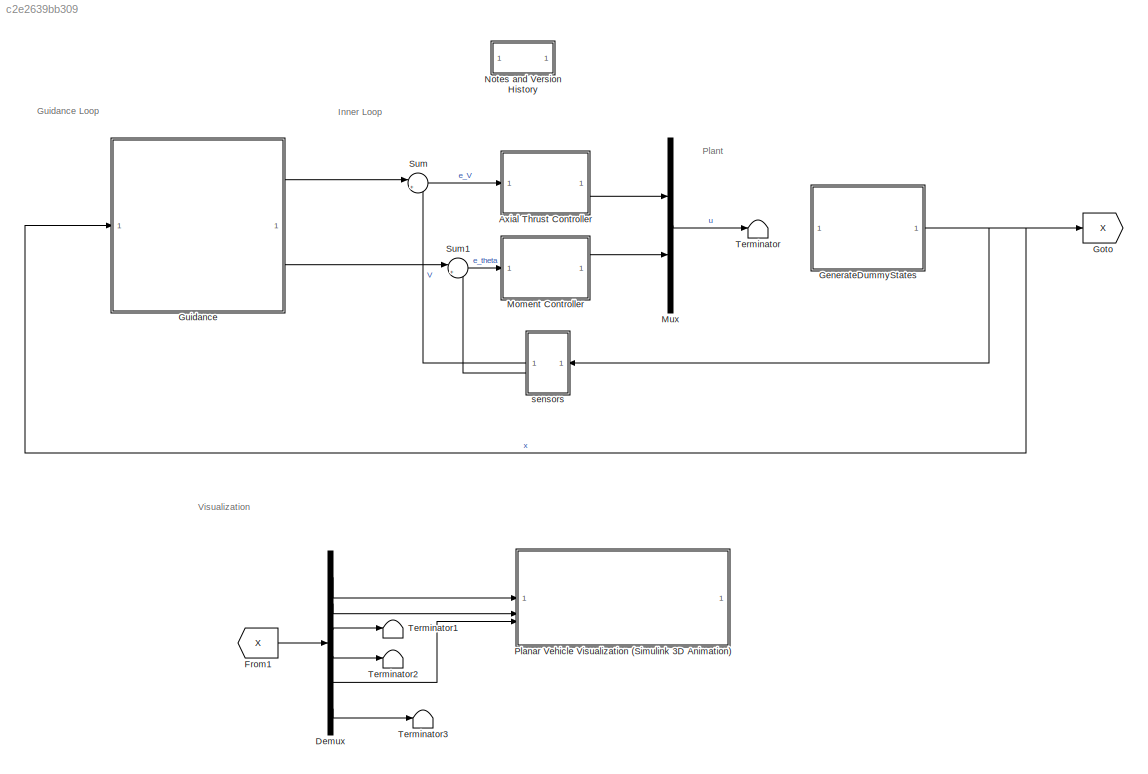
MODEL slx_c2e2639bb309
KIND model
CONFIG AbsTol = auto
CONFIG EnableMultiTasking = off
CONFIG FixedStep = auto
CONFIG MaxStep = deltaTMax
CONFIG MinStep = auto
CONFIG RelTol = 1e-3
CONFIG SampleTimeConstraint = Unconstrained
CONFIG SolverName = VariableStepAuto
CONFIG StartTime = 0.0
CONFIG StopTime = t_final
BLOCK [SubSystem] Axial Thrust Controller
BLOCK [Ground] Axial Thrust Controller/Ground
BLOCK [Terminator] Axial Thrust Controller/Terminator
BLOCK [Inport] Axial Thrust Controller/eV
BLOCK [Outport] Axial Thrust Controller/u1
  VectorParamsAs1DForOutWhenUnconnected = off
BLOCK [Demux] Demux
  Outputs = 6
BLOCK [From] From1
  GotoTag = X
BLOCK [SubSystem] GenerateDummyStates
BLOCK [Clock] GenerateDummyStates/Clock
BLOCK [Ground] GenerateDummyStates/Ground
BLOCK [Ground] GenerateDummyStates/Ground1
BLOCK [Ground] GenerateDummyStates/Ground2
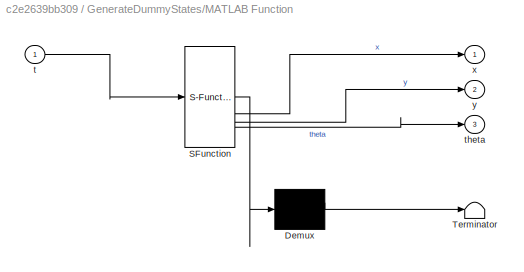
BLOCK [SubSystem] GenerateDummyStates/MATLAB Function
  ErrorFcn = Stateflow.Translate.translate
  PermitHierarchicalResolution = ExplicitOnly
  SFBlockType = MATLAB Function
  TreatAsAtomicUnit = on
BLOCK [Demux] GenerateDummyStates/MATLAB Function/ Demux 
  Outputs = 1
BLOCK [S-Function] GenerateDummyStates/MATLAB Function/ SFunction 
  EnableBusSupport = on
  FunctionName = sf_sfun
  PortCounts = [1 4]
  SFcnIsStateOwnerBlock = off
  SFunctionDeploymentMode = off
  Tag = Stateflow S-Function 4
BLOCK [Terminator] GenerateDummyStates/MATLAB Function/ Terminator 
BLOCK [Inport] GenerateDummyStates/MATLAB Function/t
BLOCK [Outport] GenerateDummyStates/MATLAB Function/theta
  Port = 3
BLOCK [Outport] GenerateDummyStates/MATLAB Function/x
BLOCK [Outport] GenerateDummyStates/MATLAB Function/y
  Port = 2
BLOCK [Mux] GenerateDummyStates/Mux
  DisplayOption = bar
  Inputs = 6
BLOCK [Outport] GenerateDummyStates/x
BLOCK [Goto] Goto
  GotoTag = X
BLOCK [SubSystem] Guidance
BLOCK [Delay] Guidance/Delay (avoid algebraic loop)
  DelayLength = 1
  InputPortMap = u0
BLOCK [Demux] Guidance/Demux1
  Outputs = 3
BLOCK [SubSystem] Guidance/Extract x, y, theta
BLOCK [Demux] Guidance/Extract x, y, theta/Demux
  Outputs = 6
BLOCK [Terminator] Guidance/Extract x, y, theta/Terminator1
BLOCK [Terminator] Guidance/Extract x, y, theta/Terminator2
BLOCK [Terminator] Guidance/Extract x, y, theta/Terminator4
BLOCK [Inport] Guidance/Extract x, y, theta/X
BLOCK [Outport] Guidance/Extract x, y, theta/theta
  Port = 3
  VectorParamsAs1DForOutWhenUnconnected = off
BLOCK [Outport] Guidance/Extract x, y, theta/x = PE
  Port = 2
  VectorParamsAs1DForOutWhenUnconnected = off
BLOCK [Outport] Guidance/Extract x, y, theta/y = PN
  VectorParamsAs1DForOutWhenUnconnected = off
BLOCK [SubSystem] Guidance/FlightRouteManager
BLOCK [Constant] Guidance/FlightRouteManager/Constant
  Value = waypoints
BLOCK [Constant] Guidance/FlightRouteManager/Constant1
  Value = 3
BLOCK [Constant] Guidance/FlightRouteManager/Constant2
  OutDataTypeStr = boolean
  Value = isClosedRoute
BLOCK [SubSystem] Guidance/FlightRouteManager/Determine Active Waypoint Index
BLOCK [DataTypeConversion] Guidance/FlightRouteManager/Determine Active Waypoint Index/Data Type Conversion
  OutDataTypeStr = uint8
  RndMeth = Floor
  SaturateOnIntegerOverflow = off
BLOCK [Reference] Guidance/FlightRouteManager/Determine Active Waypoint Index/Edge Detector  REF=spsEdgeDetectorLib/Edge Detector
  LibrarySourceBlock = sps_lib/Control/Edge Detector
  SourceBlock = spsEdgeDetectorLib/Edge Detector
  SourceType = Edge Detector
BLOCK [SubSystem] Guidance/FlightRouteManager/Determine Active Waypoint Index/MATLAB Function (reset or saturate index)
  ErrorFcn = Stateflow.Translate.translate
  PermitHierarchicalResolution = ExplicitOnly
  SFBlockType = MATLAB Function
  TreatAsAtomicUnit = on
BLOCK [Demux] Guidance/FlightRouteManager/Determine Active Waypoint Index/MATLAB Function (reset or saturate index)/ Demux 
  Outputs = 1
BLOCK [S-Function] Guidance/FlightRouteManager/Determine Active Waypoint Index/MATLAB Function (reset or saturate index)/ SFunction 
  EnableBusSupport = on
  FunctionName = sf_sfun
  PortCounts = [3 2]
  SFcnIsStateOwnerBlock = off
  SFunctionDeploymentMode = off
  Tag = Stateflow S-Function 1
BLOCK [Terminator] Guidance/FlightRouteManager/Determine Active Waypoint Index/MATLAB Function (reset or saturate index)/ Terminator 
BLOCK [Outport] Guidance/FlightRouteManager/Determine Active Waypoint Index/MATLAB Function (reset or saturate index)/activeWaypointIndex
  VectorParamsAs1DForOutWhenUnconnected = off
BLOCK [Inport] Guidance/FlightRouteManager/Determine Active Waypoint Index/MATLAB Function (reset or saturate index)/activeWaypointIndexCurrent
  Port = 3
BLOCK [Inport] Guidance/FlightRouteManager/Determine Active Waypoint Index/MATLAB Function (reset or saturate index)/isClosedRoute
  Port = 2
BLOCK [Inport] Guidance/FlightRouteManager/Determine Active Waypoint Index/MATLAB Function (reset or saturate index)/numWaypoints
BLOCK [Memory] Guidance/FlightRouteManager/Determine Active Waypoint Index/Memory
  InitialCondition = 1
BLOCK [Sum] Guidance/FlightRouteManager/Determine Active Waypoint Index/Sum
  Inputs = |++
BLOCK [Outport] Guidance/FlightRouteManager/Determine Active Waypoint Index/activeWaypointIndex
  VectorParamsAs1DForOutWhenUnconnected = off
BLOCK [Inport] Guidance/FlightRouteManager/Determine Active Waypoint Index/isClosedRoute
  Port = 2
BLOCK [Inport] Guidance/FlightRouteManager/Determine Active Waypoint Index/numWaypoints
BLOCK [Inport] Guidance/FlightRouteManager/Determine Active Waypoint Index/trigger
  Port = 3
BLOCK [Product] Guidance/FlightRouteManager/Divide
  Inputs = */
BLOCK [SubSystem] Guidance/FlightRouteManager/MATLAB Function
  ErrorFcn = Stateflow.Translate.translate
  PermitHierarchicalResolution = ExplicitOnly
  SFBlockType = MATLAB Function
  TreatAsAtomicUnit = on
BLOCK [Demux] Guidance/FlightRouteManager/MATLAB Function/ Demux 
  Outputs = 1
BLOCK [S-Function] Guidance/FlightRouteManager/MATLAB Function/ SFunction 
  EnableBusSupport = on
  FunctionName = sf_sfun
  PortCounts = [2 2]
  SFcnIsStateOwnerBlock = off
  SFunctionDeploymentMode = off
  Tag = Stateflow S-Function 2
BLOCK [Terminator] Guidance/FlightRouteManager/MATLAB Function/ Terminator 
BLOCK [Outport] Guidance/FlightRouteManager/MATLAB Function/activeWaypoint
  VectorParamsAs1DForOutWhenUnconnected = off
BLOCK [Inport] Guidance/FlightRouteManager/MATLAB Function/activeWaypointIndex
  Port = 2
BLOCK [Inport] Guidance/FlightRouteManager/MATLAB Function/waypoints
BLOCK [Width] Guidance/FlightRouteManager/Width
BLOCK [Outport] Guidance/FlightRouteManager/activeWaypoint
  VectorParamsAs1DForOutWhenUnconnected = off
BLOCK [Outport] Guidance/FlightRouteManager/activeWaypointIndex
  Port = 2
  VectorParamsAs1DForOutWhenUnconnected = off
BLOCK [Inport] Guidance/FlightRouteManager/trigger
BLOCK [SubSystem] Guidance/IsAircraftWithinWaypointRadius
BLOCK [Constant] Guidance/IsAircraftWithinWaypointRadius/Constant
  Value = R
BLOCK [RelationalOperator] Guidance/IsAircraftWithinWaypointRadius/Relational Operator
  InputSameDT = off
  Operator = <=
  OutDataTypeStr = boolean
  RndMeth = Simplest
BLOCK [Sum] Guidance/IsAircraftWithinWaypointRadius/Sum
  Inputs = |+-
BLOCK [Inport] Guidance/IsAircraftWithinWaypointRadius/aircraft_position
  Port = 2
BLOCK [SubSystem] Guidance/IsAircraftWithinWaypointRadius/vector_2_norm
BLOCK [Demux] Guidance/IsAircraftWithinWaypointRadius/vector_2_norm/Demux
  Outputs = 3
BLOCK [Math] Guidance/IsAircraftWithinWaypointRadius/vector_2_norm/Math Function
  Operator = magnitude^2
  SignedPower = on
BLOCK [Sqrt] Guidance/IsAircraftWithinWaypointRadius/vector_2_norm/Sqrt
BLOCK [Sum] Guidance/IsAircraftWithinWaypointRadius/vector_2_norm/Sum
  Inputs = +|+|+
BLOCK [Outport] Guidance/IsAircraftWithinWaypointRadius/vector_2_norm/norm(x)
  VectorParamsAs1DForOutWhenUnconnected = off
BLOCK [Inport] Guidance/IsAircraftWithinWaypointRadius/vector_2_norm/x
BLOCK [Inport] Guidance/IsAircraftWithinWaypointRadius/waypoint_position
BLOCK [Outport] Guidance/IsAircraftWithinWaypointRadius/withinRadius
  VectorParamsAs1DForOutWhenUnconnected = off
BLOCK [Constant] Guidance/Note: Modified sample time to be -1
  SampleTime = -1
  Value = 10
BLOCK [Terminator] Guidance/Terminator
BLOCK [Terminator] Guidance/Terminator4
BLOCK [Outport] Guidance/V_d
  VectorParamsAs1DForOutWhenUnconnected = off
BLOCK [SubSystem] Guidance/WaypointTrackingController (Planar)
BLOCK [SubSystem] Guidance/WaypointTrackingController (Planar)/CalculateCourseAngle
BLOCK [Constant] Guidance/WaypointTrackingController (Planar)/CalculateCourseAngle/Constant
  Value = pi/2
BLOCK [Sum] Guidance/WaypointTrackingController (Planar)/CalculateCourseAngle/Sum
  Inputs = |+-
BLOCK [Trigonometry] Guidance/WaypointTrackingController (Planar)/CalculateCourseAngle/Trigonometric Function
  Operator = atan2
BLOCK [Inport] Guidance/WaypointTrackingController (Planar)/CalculateCourseAngle/V_E
  Port = 2
BLOCK [Inport] Guidance/WaypointTrackingController (Planar)/CalculateCourseAngle/V_N
BLOCK [SubSystem] Guidance/WaypointTrackingController (Planar)/CalculateCourseAngle/[0,2*pi) Bound
  Description = Version History  \n                 \n05/??/05: Created
BLOCK [Constant] Guidance/WaypointTrackingController (Planar)/CalculateCourseAngle/[0,2*pi) Bound/Constant
  Value = 2*pi
BLOCK [Math] Guidance/WaypointTrackingController (Planar)/CalculateCourseAngle/[0,2*pi) Bound/Math Function
  Operator = mod
  SignedPower = on
BLOCK [Inport] Guidance/WaypointTrackingController (Planar)/CalculateCourseAngle/[0,2*pi) Bound/in
BLOCK [Outport] Guidance/WaypointTrackingController (Planar)/CalculateCourseAngle/[0,2*pi) Bound/out (bounded)
  VectorParamsAs1DForOutWhenUnconnected = off
BLOCK [Outport] Guidance/WaypointTrackingController (Planar)/CalculateCourseAngle/chi
  VectorParamsAs1DForOutWhenUnconnected = off
BLOCK [SubSystem] Guidance/WaypointTrackingController (Planar)/MATLAB Function (Determine theta_d which minimizes yawing by aircraft)
  ErrorFcn = Stateflow.Translate.translate
  PermitHierarchicalResolution = ExplicitOnly
  SFBlockType = MATLAB Function
  TreatAsAtomicUnit = on
BLOCK [Demux] Guidance/WaypointTrackingController (Planar)/MATLAB Function (Determine theta_d which minimizes yawing by aircraft)/ Demux 
  Outputs = 1
BLOCK [S-Function] Guidance/WaypointTrackingController (Planar)/MATLAB Function (Determine theta_d which minimizes yawing by aircraft)/ SFunction 
  EnableBusSupport = on
  FunctionName = sf_sfun
  PortCounts = [2 2]
  SFcnIsStateOwnerBlock = off
  SFunctionDeploymentMode = off
  Tag = Stateflow S-Function 3
BLOCK [Terminator] Guidance/WaypointTrackingController (Planar)/MATLAB Function (Determine theta_d which minimizes yawing by aircraft)/ Terminator 
BLOCK [Inport] Guidance/WaypointTrackingController (Planar)/MATLAB Function (Determine theta_d which minimizes yawing by aircraft)/chi_wp
BLOCK [Inport] Guidance/WaypointTrackingController (Planar)/MATLAB Function (Determine theta_d which minimizes yawing by aircraft)/theta_aircraft
  Port = 2
BLOCK [Outport] Guidance/WaypointTrackingController (Planar)/MATLAB Function (Determine theta_d which minimizes yawing by aircraft)/theta_d_min
  VectorParamsAs1DForOutWhenUnconnected = off
BLOCK [Sum] Guidance/WaypointTrackingController (Planar)/Sum
  Inputs = |+-
BLOCK [Sum] Guidance/WaypointTrackingController (Planar)/Sum1
  Inputs = |+-
BLOCK [Inport] Guidance/WaypointTrackingController (Planar)/aircraft_PE
  Port = 2
BLOCK [Inport] Guidance/WaypointTrackingController (Planar)/aircraft_PN
BLOCK [Inport] Guidance/WaypointTrackingController (Planar)/aircraft_theta
  Port = 3
BLOCK [Outport] Guidance/WaypointTrackingController (Planar)/theta_d
  VectorParamsAs1DForOutWhenUnconnected = off
BLOCK [Inport] Guidance/WaypointTrackingController (Planar)/waypoint_PE
  Port = 5
BLOCK [Inport] Guidance/WaypointTrackingController (Planar)/waypoint_PN
  Port = 4
BLOCK [SubSystem] Guidance/extract planar position
BLOCK [Constant] Guidance/extract planar position/Constant
  Value = 0
BLOCK [Demux] Guidance/extract planar position/Demux2
  Outputs = 6
BLOCK [Mux] Guidance/extract planar position/Mux1
  DisplayOption = bar
  Inputs = 3
BLOCK [Terminator] Guidance/extract planar position/Terminator5
BLOCK [Terminator] Guidance/extract planar position/Terminator6
BLOCK [Terminator] Guidance/extract planar position/Terminator7
BLOCK [Terminator] Guidance/extract planar position/Terminator8
BLOCK [Inport] Guidance/extract planar position/x
BLOCK [Outport] Guidance/extract planar position/x_ENU
  VectorParamsAs1DForOutWhenUnconnected = off
BLOCK [Outport] Guidance/theta_d
  Port = 2
  VectorParamsAs1DForOutWhenUnconnected = off
BLOCK [Inport] Guidance/x
BLOCK [SubSystem] Moment Controller
BLOCK [Ground] Moment Controller/Ground
BLOCK [Terminator] Moment Controller/Terminator
BLOCK [Inport] Moment Controller/e_theta
BLOCK [Outport] Moment Controller/u2
  VectorParamsAs1DForOutWhenUnconnected = off
BLOCK [Mux] Mux
  DisplayOption = bar
  Inputs = 2
BLOCK [SubSystem] Notes and Version History
BLOCK [SubSystem] Planar Vehicle Visualization (Simulink 3D Animation)
BLOCK [Constant] Planar Vehicle Visualization (Simulink 3D Animation)/Account for how VRML Shuttle is drawn
  Value = pi
BLOCK [Constant] Planar Vehicle Visualization (Simulink 3D Animation)/Constant
  Value = 0
BLOCK [Constant] Planar Vehicle Visualization (Simulink 3D Animation)/Constant1
  Value = 0
BLOCK [Constant] Planar Vehicle Visualization (Simulink 3D Animation)/Constant2
  Value = 0
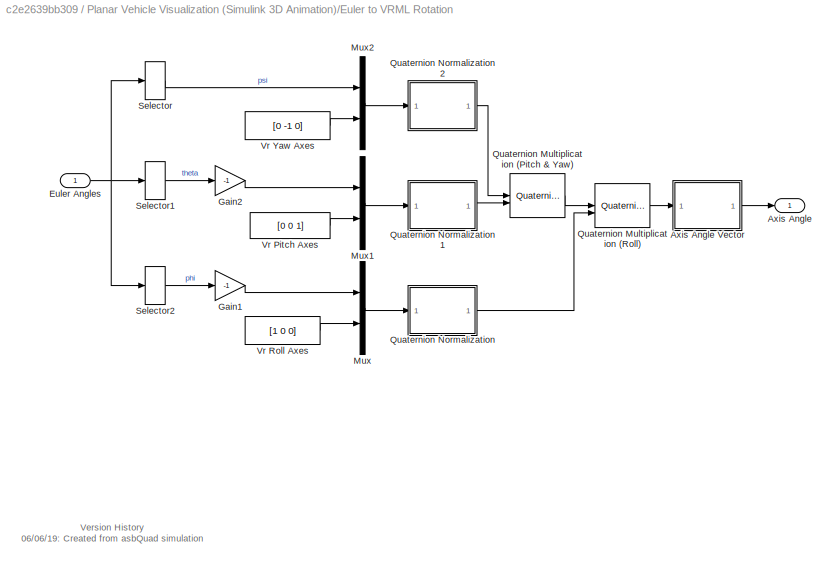
BLOCK [SubSystem] Planar Vehicle Visualization (Simulink 3D Animation)/Euler to VRML Rotation
BLOCK [Outport] Planar Vehicle Visualization (Simulink 3D Animation)/Euler to VRML Rotation/Axis Angle
  VectorParamsAs1DForOutWhenUnconnected = off
BLOCK [SubSystem] Planar Vehicle Visualization (Simulink 3D Animation)/Euler to VRML Rotation/Axis Angle Vector
BLOCK [Gain] Planar Vehicle Visualization (Simulink 3D Animation)/Euler to VRML Rotation/Axis Angle Vector/2
  Gain = 2
  OutDataTypeStr = Inherit: Same as input
  ParamDataTypeStr = Inherit: Same as input
  SaturateOnIntegerOverflow = on
BLOCK [Constant] Planar Vehicle Visualization (Simulink 3D Animation)/Euler to VRML Rotation/Axis Angle Vector/Constant
  Value = 1e-6
BLOCK [Demux] Planar Vehicle Visualization (Simulink 3D Animation)/Euler to VRML Rotation/Axis Angle Vector/Demux
  DisplayOption = none
  Outputs = [1 3 ]
BLOCK [Mux] Planar Vehicle Visualization (Simulink 3D Animation)/Euler to VRML Rotation/Axis Angle Vector/Mux
  DisplayOption = bar
  Inputs = 2
BLOCK [Product] Planar Vehicle Visualization (Simulink 3D Animation)/Euler to VRML Rotation/Axis Angle Vector/Product
  InputSameDT = on
  Inputs = */
  OutDataTypeStr = Inherit: Same as first input
  SaturateOnIntegerOverflow = on
BLOCK [Switch] Planar Vehicle Visualization (Simulink 3D Animation)/Euler to VRML Rotation/Axis Angle Vector/Switch
  Criteria = u2 ~= 0
  InputSameDT = off
  SaturateOnIntegerOverflow = off
BLOCK [Trigonometry] Planar Vehicle Visualization (Simulink 3D Animation)/Euler to VRML Rotation/Axis Angle Vector/Trigonometric Function
BLOCK [Trigonometry] Planar Vehicle Visualization (Simulink 3D Animation)/Euler to VRML Rotation/Axis Angle Vector/Trigonometric Function2
  Operator = acos
BLOCK [Inport] Planar Vehicle Visualization (Simulink 3D Animation)/Euler to VRML Rotation/Axis Angle Vector/e0
BLOCK [Outport] Planar Vehicle Visualization (Simulink 3D Animation)/Euler to VRML Rotation/Axis Angle Vector/e0_norm
  VectorParamsAs1DForOutWhenUnconnected = off
BLOCK [Inport] Planar Vehicle Visualization (Simulink 3D Animation)/Euler to VRML Rotation/Euler Angles
BLOCK [Gain] Planar Vehicle Visualization (Simulink 3D Animation)/Euler to VRML Rotation/Gain1
  Gain = -1
BLOCK [Gain] Planar Vehicle Visualization (Simulink 3D Animation)/Euler to VRML Rotation/Gain2
  Gain = -1
BLOCK [Mux] Planar Vehicle Visualization (Simulink 3D Animation)/Euler to VRML Rotation/Mux
  DisplayOption = bar
  Inputs = 2
BLOCK [Mux] Planar Vehicle Visualization (Simulink 3D Animation)/Euler to VRML Rotation/Mux1
  DisplayOption = bar
  Inputs = 2
BLOCK [Mux] Planar Vehicle Visualization (Simulink 3D Animation)/Euler to VRML Rotation/Mux2
  DisplayOption = bar
  Inputs = 2
BLOCK [Reference] Planar Vehicle Visualization (Simulink 3D Animation)/Euler to VRML Rotation/Quaternion Multiplication (Pitch & Yaw)  REF=aerolibutil/Quaternion
Multiplication
  SourceBlock = aerolibutil/Quaternion\nMultiplication
  SourceType = Quaternion Multiplication
BLOCK [Reference] Planar Vehicle Visualization (Simulink 3D Animation)/Euler to VRML Rotation/Quaternion Multiplication (Roll)  REF=aerolibutil/Quaternion
Multiplication
  SourceBlock = aerolibutil/Quaternion\nMultiplication
  SourceType = Quaternion Multiplication
BLOCK [SubSystem] Planar Vehicle Visualization (Simulink 3D Animation)/Euler to VRML Rotation/Quaternion Normalization
BLOCK [Gain] Planar Vehicle Visualization (Simulink 3D Animation)/Euler to VRML Rotation/Quaternion Normalization/1//2
  Gain = 1/2
  OutDataTypeStr = Inherit: Same as input
  ParamDataTypeStr = Inherit: Same as input
  SaturateOnIntegerOverflow = on
BLOCK [Demux] Planar Vehicle Visualization (Simulink 3D Animation)/Euler to VRML Rotation/Quaternion Normalization/Demux
  DisplayOption = none
  Outputs = [1 3]
BLOCK [Mux] Planar Vehicle Visualization (Simulink 3D Animation)/Euler to VRML Rotation/Quaternion Normalization/Mux
  DisplayOption = bar
  Inputs = 2
BLOCK [Product] Planar Vehicle Visualization (Simulink 3D Animation)/Euler to VRML Rotation/Quaternion Normalization/Product
  InputSameDT = on
  OutDataTypeStr = Inherit: Same as first input
  SaturateOnIntegerOverflow = on
BLOCK [Trigonometry] Planar Vehicle Visualization (Simulink 3D Animation)/Euler to VRML Rotation/Quaternion Normalization/Trigonometric Function
BLOCK [Trigonometry] Planar Vehicle Visualization (Simulink 3D Animation)/Euler to VRML Rotation/Quaternion Normalization/Trigonometric Function1
  Operator = cos
BLOCK [Inport] Planar Vehicle Visualization (Simulink 3D Animation)/Euler to VRML Rotation/Quaternion Normalization/e0
BLOCK [Outport] Planar Vehicle Visualization (Simulink 3D Animation)/Euler to VRML Rotation/Quaternion Normalization/e0_norm
  VectorParamsAs1DForOutWhenUnconnected = off
BLOCK [SubSystem] Planar Vehicle Visualization (Simulink 3D Animation)/Euler to VRML Rotation/Quaternion Normalization1
BLOCK [Gain] Planar Vehicle Visualization (Simulink 3D Animation)/Euler to VRML Rotation/Quaternion Normalization1/1//2
  Gain = 1/2
  OutDataTypeStr = Inherit: Same as input
  ParamDataTypeStr = Inherit: Same as input
  SaturateOnIntegerOverflow = on
BLOCK [Demux] Planar Vehicle Visualization (Simulink 3D Animation)/Euler to VRML Rotation/Quaternion Normalization1/Demux
  DisplayOption = none
  Outputs = [1 3]
BLOCK [Mux] Planar Vehicle Visualization (Simulink 3D Animation)/Euler to VRML Rotation/Quaternion Normalization1/Mux
  DisplayOption = bar
  Inputs = 2
BLOCK [Product] Planar Vehicle Visualization (Simulink 3D Animation)/Euler to VRML Rotation/Quaternion Normalization1/Product
  InputSameDT = on
  OutDataTypeStr = Inherit: Same as first input
  SaturateOnIntegerOverflow = on
BLOCK [Trigonometry] Planar Vehicle Visualization (Simulink 3D Animation)/Euler to VRML Rotation/Quaternion Normalization1/Trigonometric Function
BLOCK [Trigonometry] Planar Vehicle Visualization (Simulink 3D Animation)/Euler to VRML Rotation/Quaternion Normalization1/Trigonometric Function1
  Operator = cos
BLOCK [Inport] Planar Vehicle Visualization (Simulink 3D Animation)/Euler to VRML Rotation/Quaternion Normalization1/e0
BLOCK [Outport] Planar Vehicle Visualization (Simulink 3D Animation)/Euler to VRML Rotation/Quaternion Normalization1/e0_norm
  VectorParamsAs1DForOutWhenUnconnected = off
BLOCK [SubSystem] Planar Vehicle Visualization (Simulink 3D Animation)/Euler to VRML Rotation/Quaternion Normalization2
BLOCK [Gain] Planar Vehicle Visualization (Simulink 3D Animation)/Euler to VRML Rotation/Quaternion Normalization2/1//2
  Gain = 1/2
  OutDataTypeStr = Inherit: Same as input
  ParamDataTypeStr = Inherit: Same as input
  SaturateOnIntegerOverflow = on
BLOCK [Demux] Planar Vehicle Visualization (Simulink 3D Animation)/Euler to VRML Rotation/Quaternion Normalization2/Demux
  DisplayOption = none
  Outputs = [1 3]
BLOCK [Mux] Planar Vehicle Visualization (Simulink 3D Animation)/Euler to VRML Rotation/Quaternion Normalization2/Mux
  DisplayOption = bar
  Inputs = 2
BLOCK [Product] Planar Vehicle Visualization (Simulink 3D Animation)/Euler to VRML Rotation/Quaternion Normalization2/Product
  InputSameDT = on
  OutDataTypeStr = Inherit: Same as first input
  SaturateOnIntegerOverflow = on
BLOCK [Trigonometry] Planar Vehicle Visualization (Simulink 3D Animation)/Euler to VRML Rotation/Quaternion Normalization2/Trigonometric Function
BLOCK [Trigonometry] Planar Vehicle Visualization (Simulink 3D Animation)/Euler to VRML Rotation/Quaternion Normalization2/Trigonometric Function1
  Operator = cos
BLOCK [Inport] Planar Vehicle Visualization (Simulink 3D Animation)/Euler to VRML Rotation/Quaternion Normalization2/e0
BLOCK [Outport] Planar Vehicle Visualization (Simulink 3D Animation)/Euler to VRML Rotation/Quaternion Normalization2/e0_norm
  VectorParamsAs1DForOutWhenUnconnected = off
BLOCK [Selector] Planar Vehicle Visualization (Simulink 3D Animation)/Euler to VRML Rotation/Selector
  IndexOptions = Index vector (dialog)
  Indices = [3]
  InputPortWidth = 3
  OutputSizes = 1
BLOCK [Selector] Planar Vehicle Visualization (Simulink 3D Animation)/Euler to VRML Rotation/Selector1
  IndexOptions = Index vector (dialog)
  Indices = [2]
  InputPortWidth = 3
  OutputSizes = 1
BLOCK [Selector] Planar Vehicle Visualization (Simulink 3D Animation)/Euler to VRML Rotation/Selector2
  IndexOptions = Index vector (dialog)
  Indices = [1]
  InputPortWidth = 3
  OutputSizes = 1
BLOCK [Constant] Planar Vehicle Visualization (Simulink 3D Animation)/Euler to VRML Rotation/Vr Pitch Axes
  NameLocation = top
  Value = [0 0 1]
BLOCK [Constant] Planar Vehicle Visualization (Simulink 3D Animation)/Euler to VRML Rotation/Vr Roll Axes
  NameLocation = top
  Value = [1 0 0]
BLOCK [Constant] Planar Vehicle Visualization (Simulink 3D Animation)/Euler to VRML Rotation/Vr Yaw Axes
  Value = [0 -1 0]
BLOCK [Mux] Planar Vehicle Visualization (Simulink 3D Animation)/Mux
  DisplayOption = bar
  Inputs = 3
BLOCK [Mux] Planar Vehicle Visualization (Simulink 3D Animation)/Mux1
  DisplayOption = bar
  Inputs = 3
BLOCK [SubSystem] Planar Vehicle Visualization (Simulink 3D Animation)/NED to VRML Translation
BLOCK [Demux] Planar Vehicle Visualization (Simulink 3D Animation)/NED to VRML Translation/Demux
  DisplayOption = none
  Outputs = 3
BLOCK [Mux] Planar Vehicle Visualization (Simulink 3D Animation)/NED to VRML Translation/Mux
  DisplayOption = bar
  Inputs = 3
BLOCK [Inport] Planar Vehicle Visualization (Simulink 3D Animation)/NED to VRML Translation/X_NED
BLOCK [Outport] Planar Vehicle Visualization (Simulink 3D Animation)/NED to VRML Translation/X_VRML
  VectorParamsAs1DForOutWhenUnconnected = off
BLOCK [Gain] Planar Vehicle Visualization (Simulink 3D Animation)/NED to VRML Translation/rad-->deg1
  Gain = -1
  NameLocation = top
  OutDataTypeStr = Inherit: Same as input
  ParamDataTypeStr = Inherit: Same as input
  SaturateOnIntegerOverflow = on
BLOCK [Sum] Planar Vehicle Visualization (Simulink 3D Animation)/Sum
  Inputs = |++
BLOCK [Reference] Planar Vehicle Visualization (Simulink 3D Animation)/VR Sink  REF=vrlib/VR Sink
  InstantiateOnLoad = on
  SourceBlock = vrlib/VR Sink
  SourceType = Virtual Reality Sink
BLOCK [Inport] Planar Vehicle Visualization (Simulink 3D Animation)/theta
  Port = 3
BLOCK [SubSystem] Planar Vehicle Visualization (Simulink 3D Animation)/theta to psi
BLOCK [Constant] Planar Vehicle Visualization (Simulink 3D Animation)/theta to psi/Constant
  Value = pi/2
BLOCK [Sum] Planar Vehicle Visualization (Simulink 3D Animation)/theta to psi/Sum
  Inputs = |-+
BLOCK [Outport] Planar Vehicle Visualization (Simulink 3D Animation)/theta to psi/psi
  VectorParamsAs1DForOutWhenUnconnected = off
BLOCK [Inport] Planar Vehicle Visualization (Simulink 3D Animation)/theta to psi/theta
BLOCK [Inport] Planar Vehicle Visualization (Simulink 3D Animation)/x (P_E)
BLOCK [Inport] Planar Vehicle Visualization (Simulink 3D Animation)/y (P_N)
  Port = 2
BLOCK [Sum] Sum
  Inputs = |+-
BLOCK [Sum] Sum1
  Inputs = |+-
BLOCK [Terminator] Terminator
BLOCK [Terminator] Terminator1
BLOCK [Terminator] Terminator2
BLOCK [Terminator] Terminator3
BLOCK [SubSystem] sensors
BLOCK [Demux] sensors/Demux
  Outputs = 6
BLOCK [Terminator] sensors/Terminator
BLOCK [Terminator] sensors/Terminator1
BLOCK [Terminator] sensors/Terminator2
BLOCK [Terminator] sensors/Terminator3
BLOCK [Terminator] sensors/Terminator4
BLOCK [Terminator] sensors/Terminator5
BLOCK [Outport] sensors/V
  VectorParamsAs1DForOutWhenUnconnected = off
BLOCK [SubSystem] sensors/rate_sensors
BLOCK [Demux] sensors/rate_sensors/Demux
  Outputs = 6
BLOCK [Terminator] sensors/rate_sensors/Terminator
BLOCK [Terminator] sensors/rate_sensors/Terminator1
BLOCK [Terminator] sensors/rate_sensors/Terminator2
BLOCK [Outport] sensors/rate_sensors/V
  VectorParamsAs1DForOutWhenUnconnected = off
BLOCK [SubSystem] sensors/rate_sensors/airspeed_planar
BLOCK [Math] sensors/rate_sensors/airspeed_planar/Math Function
  Operator = magnitude^2
  SignedPower = on
BLOCK [Math] sensors/rate_sensors/airspeed_planar/Math Function1
  Operator = magnitude^2
  SignedPower = on
BLOCK [Sqrt] sensors/rate_sensors/airspeed_planar/Sqrt
BLOCK [Sum] sensors/rate_sensors/airspeed_planar/Sum
  IconShape = rectangular
BLOCK [Outport] sensors/rate_sensors/airspeed_planar/Va
  VectorParamsAs1DForOutWhenUnconnected = off
BLOCK [Inport] sensors/rate_sensors/airspeed_planar/Vx
BLOCK [Inport] sensors/rate_sensors/airspeed_planar/Vy
  Port = 2
BLOCK [Outport] sensors/rate_sensors/thetaDot
  Port = 2
  VectorParamsAs1DForOutWhenUnconnected = off
BLOCK [Inport] sensors/rate_sensors/x
BLOCK [Outport] sensors/theta
  Port = 2
  VectorParamsAs1DForOutWhenUnconnected = off
BLOCK [Inport] sensors/x
ANNOTATION (root): Guidance Loop
ANNOTATION (root): Inner Loop
ANNOTATION (root): Plant
ANNOTATION (root): Visualization
ANNOTATION Guidance/FlightRouteManager: Version History: 05/31/19: Created 06/02/19: Fixing edge detector. 06/04/19: Clean up edge detector
ANNOTATION Guidance/IsAircraftWithinWaypointRadius: Version History 06/04/19: Created
ANNOTATION Guidance/WaypointTrackingController (Planar): Version History 06/05/19: Created 06/06/19: Updated documentation. Added logic to minimize turning needed
ANNOTATION Guidance/WaypointTrackingController (Planar)/CalculateCourseAngle: Version History 06/05/19: Created
ANNOTATION Notes and Version History: Skeleton code to show how to perform guidance and inner loop control with a planar vehicle. Christopher Lum <email> Version History 06/04/19: Created from previous model 06/05/19: Updated 06/06/19: Adding Simulink 3D Animation visualization 06/07/19: Added waypoint following. Confirmed to work. 04/04/21: Tested and confirmed to work after removing the wrapping of theta. Rewired diagram 05/20/21: B...<+207ch>
ANNOTATION Planar Vehicle Visualization (Simulink 3D Animation): Version History 06/06/19: Created 06/07/19: Updated scale and time step for animation
ANNOTATION Planar Vehicle Visualization (Simulink 3D Animation)/Euler to VRML Rotation: Version History 06/06/19: Created from asbQuad simulation
ANNOTATION Planar Vehicle Visualization (Simulink 3D Animation)/NED to VRML Translation: Version History 06/05/19: Created
ANNOTATION sensors/rate_sensors: Version History 03/27/19: Created
ANNOTATION sensors/rate_sensors/airspeed_planar: Version History 03/26/19: Created
LINE Axial Thrust Controller/Ground:1 -> Axial Thrust Controller/u1:1
LINE Axial Thrust Controller/eV:1 -> Axial Thrust Controller/Terminator:1
LINE Axial Thrust Controller:1 -> Mux:1
LINE Demux:1 -> Planar Vehicle Visualization (Simulink 3D Animation):1
LINE Demux:2 -> Planar Vehicle Visualization (Simulink 3D Animation):2
LINE Demux:3 -> Terminator1:1
LINE Demux:4 -> Terminator2:1
LINE Demux:5 -> Planar Vehicle Visualization (Simulink 3D Animation):3
LINE Demux:6 -> Terminator3:1
LINE From1:1 -> Demux:1
LINE GenerateDummyStates/Clock:1 -> GenerateDummyStates/MATLAB Function:1
LINE GenerateDummyStates/Ground1:1 -> GenerateDummyStates/Mux:4
LINE GenerateDummyStates/Ground2:1 -> GenerateDummyStates/Mux:6
LINE GenerateDummyStates/Ground:1 -> GenerateDummyStates/Mux:3
LINE GenerateDummyStates/MATLAB Function:1 -> GenerateDummyStates/Mux:1
LINE GenerateDummyStates/MATLAB Function:2 -> GenerateDummyStates/Mux:2
LINE GenerateDummyStates/MATLAB Function:3 -> GenerateDummyStates/Mux:5
LINE GenerateDummyStates/Mux:1 -> GenerateDummyStates/x:1
NET GenerateDummyStates:1 -> Goto:1, Guidance:1, sensors:1
LINE Guidance/Delay (avoid algebraic loop):1 -> Guidance/IsAircraftWithinWaypointRadius:1
LINE Guidance/Demux1:1 -> Guidance/WaypointTrackingController (Planar):5
LINE Guidance/Demux1:2 -> Guidance/WaypointTrackingController (Planar):4
LINE Guidance/Demux1:3 -> Guidance/Terminator:1
LINE Guidance/Extract x, y, theta/Demux:1 -> Guidance/Extract x, y, theta/x = PE:1
LINE Guidance/Extract x, y, theta/Demux:2 -> Guidance/Extract x, y, theta/y = PN:1
LINE Guidance/Extract x, y, theta/Demux:3 -> Guidance/Extract x, y, theta/Terminator1:1
LINE Guidance/Extract x, y, theta/Demux:4 -> Guidance/Extract x, y, theta/Terminator2:1
LINE Guidance/Extract x, y, theta/Demux:5 -> Guidance/Extract x, y, theta/theta:1
LINE Guidance/Extract x, y, theta/Demux:6 -> Guidance/Extract x, y, theta/Terminator4:1
LINE Guidance/Extract x, y, theta/X:1 -> Guidance/Extract x, y, theta/Demux:1
LINE Guidance/Extract x, y, theta:1 -> Guidance/WaypointTrackingController (Planar):1
LINE Guidance/Extract x, y, theta:2 -> Guidance/WaypointTrackingController (Planar):2
LINE Guidance/Extract x, y, theta:3 -> Guidance/WaypointTrackingController (Planar):3
LINE Guidance/FlightRouteManager/Constant1:1 -> Guidance/FlightRouteManager/Divide:2
LINE Guidance/FlightRouteManager/Constant2:1 -> Guidance/FlightRouteManager/Determine Active Waypoint Index:2
NET Guidance/FlightRouteManager/Constant:1 -> Guidance/FlightRouteManager/MATLAB Function:1, Guidance/FlightRouteManager/Width:1
LINE Guidance/FlightRouteManager/Determine Active Waypoint Index/Data Type Conversion:1 -> Guidance/FlightRouteManager/Determine Active Waypoint Index/Sum:1
LINE Guidance/FlightRouteManager/Determine Active Waypoint Index/Edge Detector:1 -> Guidance/FlightRouteManager/Determine Active Waypoint Index/Data Type Conversion:1
NET Guidance/FlightRouteManager/Determine Active Waypoint Index/MATLAB Function (reset or saturate index):1 -> Guidance/FlightRouteManager/Determine Active Waypoint Index/Memory:1, Guidance/FlightRouteManager/Determine Active Waypoint Index/activeWaypointIndex:1
LINE Guidance/FlightRouteManager/Determine Active Waypoint Index/Memory:1 -> Guidance/FlightRouteManager/Determine Active Waypoint Index/Sum:2
LINE Guidance/FlightRouteManager/Determine Active Waypoint Index/Sum:1 -> Guidance/FlightRouteManager/Determine Active Waypoint Index/MATLAB Function (reset or saturate index):3
LINE Guidance/FlightRouteManager/Determine Active Waypoint Index/isClosedRoute:1 -> Guidance/FlightRouteManager/Determine Active Waypoint Index/MATLAB Function (reset or saturate index):2
LINE Guidance/FlightRouteManager/Determine Active Waypoint Index/numWaypoints:1 -> Guidance/FlightRouteManager/Determine Active Waypoint Index/MATLAB Function (reset or saturate index):1
LINE Guidance/FlightRouteManager/Determine Active Waypoint Index/trigger:1 -> Guidance/FlightRouteManager/Determine Active Waypoint Index/Edge Detector:1
NET Guidance/FlightRouteManager/Determine Active Waypoint Index:1 -> Guidance/FlightRouteManager/MATLAB Function:2, Guidance/FlightRouteManager/activeWaypointIndex:1
LINE Guidance/FlightRouteManager/Divide:1 -> Guidance/FlightRouteManager/Determine Active Waypoint Index:1
LINE Guidance/FlightRouteManager/MATLAB Function:1 -> Guidance/FlightRouteManager/activeWaypoint:1
LINE Guidance/FlightRouteManager/Width:1 -> Guidance/FlightRouteManager/Divide:1
LINE Guidance/FlightRouteManager/trigger:1 -> Guidance/FlightRouteManager/Determine Active Waypoint Index:3
NET Guidance/FlightRouteManager:1 -> Guidance/Delay (avoid algebraic loop):1, Guidance/Demux1:1
LINE Guidance/FlightRouteManager:2 -> Guidance/Terminator4:1
LINE Guidance/IsAircraftWithinWaypointRadius/Constant:1 -> Guidance/IsAircraftWithinWaypointRadius/Relational Operator:2
LINE Guidance/IsAircraftWithinWaypointRadius/Relational Operator:1 -> Guidance/IsAircraftWithinWaypointRadius/withinRadius:1
LINE Guidance/IsAircraftWithinWaypointRadius/Sum:1 -> Guidance/IsAircraftWithinWaypointRadius/vector_2_norm:1
LINE Guidance/IsAircraftWithinWaypointRadius/aircraft_position:1 -> Guidance/IsAircraftWithinWaypointRadius/Sum:2
LINE Guidance/IsAircraftWithinWaypointRadius/vector_2_norm/Demux:1 -> Guidance/IsAircraftWithinWaypointRadius/vector_2_norm/Sum:1
LINE Guidance/IsAircraftWithinWaypointRadius/vector_2_norm/Demux:2 -> Guidance/IsAircraftWithinWaypointRadius/vector_2_norm/Sum:2
LINE Guidance/IsAircraftWithinWaypointRadius/vector_2_norm/Demux:3 -> Guidance/IsAircraftWithinWaypointRadius/vector_2_norm/Sum:3
LINE Guidance/IsAircraftWithinWaypointRadius/vector_2_norm/Math Function:1 -> Guidance/IsAircraftWithinWaypointRadius/vector_2_norm/Demux:1
LINE Guidance/IsAircraftWithinWaypointRadius/vector_2_norm/Sqrt:1 -> Guidance/IsAircraftWithinWaypointRadius/vector_2_norm/norm(x):1
LINE Guidance/IsAircraftWithinWaypointRadius/vector_2_norm/Sum:1 -> Guidance/IsAircraftWithinWaypointRadius/vector_2_norm/Sqrt:1
LINE Guidance/IsAircraftWithinWaypointRadius/vector_2_norm/x:1 -> Guidance/IsAircraftWithinWaypointRadius/vector_2_norm/Math Function:1
LINE Guidance/IsAircraftWithinWaypointRadius/vector_2_norm:1 -> Guidance/IsAircraftWithinWaypointRadius/Relational Operator:1
LINE Guidance/IsAircraftWithinWaypointRadius/waypoint_position:1 -> Guidance/IsAircraftWithinWaypointRadius/Sum:1
LINE Guidance/IsAircraftWithinWaypointRadius:1 -> Guidance/FlightRouteManager:1
LINE Guidance/Note: Modified sample time to be -1:1 -> Guidance/V_d:1
LINE Guidance/WaypointTrackingController (Planar)/CalculateCourseAngle/Constant:1 -> Guidance/WaypointTrackingController (Planar)/CalculateCourseAngle/Sum:1
LINE Guidance/WaypointTrackingController (Planar)/CalculateCourseAngle/Sum:1 -> Guidance/WaypointTrackingController (Planar)/CalculateCourseAngle/[0,2*pi) Bound:1
LINE Guidance/WaypointTrackingController (Planar)/CalculateCourseAngle/Trigonometric Function:1 -> Guidance/WaypointTrackingController (Planar)/CalculateCourseAngle/Sum:2
LINE Guidance/WaypointTrackingController (Planar)/CalculateCourseAngle/V_E:1 -> Guidance/WaypointTrackingController (Planar)/CalculateCourseAngle/Trigonometric Function:2
LINE Guidance/WaypointTrackingController (Planar)/CalculateCourseAngle/V_N:1 -> Guidance/WaypointTrackingController (Planar)/CalculateCourseAngle/Trigonometric Function:1
LINE Guidance/WaypointTrackingController (Planar)/CalculateCourseAngle/[0,2*pi) Bound/Constant:1 -> Guidance/WaypointTrackingController (Planar)/CalculateCourseAngle/[0,2*pi) Bound/Math Function:2
LINE Guidance/WaypointTrackingController (Planar)/CalculateCourseAngle/[0,2*pi) Bound/Math Function:1 -> Guidance/WaypointTrackingController (Planar)/CalculateCourseAngle/[0,2*pi) Bound/out (bounded):1
LINE Guidance/WaypointTrackingController (Planar)/CalculateCourseAngle/[0,2*pi) Bound/in:1 -> Guidance/WaypointTrackingController (Planar)/CalculateCourseAngle/[0,2*pi) Bound/Math Function:1
LINE Guidance/WaypointTrackingController (Planar)/CalculateCourseAngle/[0,2*pi) Bound:1 -> Guidance/WaypointTrackingController (Planar)/CalculateCourseAngle/chi:1
LINE Guidance/WaypointTrackingController (Planar)/CalculateCourseAngle:1 -> Guidance/WaypointTrackingController (Planar)/MATLAB Function (Determine theta_d which minimizes yawing by aircraft):1
LINE Guidance/WaypointTrackingController (Planar)/MATLAB Function (Determine theta_d which minimizes yawing by aircraft):1 -> Guidance/WaypointTrackingController (Planar)/theta_d:1
LINE Guidance/WaypointTrackingController (Planar)/Sum1:1 -> Guidance/WaypointTrackingController (Planar)/CalculateCourseAngle:2
LINE Guidance/WaypointTrackingController (Planar)/Sum:1 -> Guidance/WaypointTrackingController (Planar)/CalculateCourseAngle:1
LINE Guidance/WaypointTrackingController (Planar)/aircraft_PE:1 -> Guidance/WaypointTrackingController (Planar)/Sum1:2
LINE Guidance/WaypointTrackingController (Planar)/aircraft_PN:1 -> Guidance/WaypointTrackingController (Planar)/Sum:2
LINE Guidance/WaypointTrackingController (Planar)/aircraft_theta:1 -> Guidance/WaypointTrackingController (Planar)/MATLAB Function (Determine theta_d which minimizes yawing by aircraft):2
LINE Guidance/WaypointTrackingController (Planar)/waypoint_PE:1 -> Guidance/WaypointTrackingController (Planar)/Sum1:1
LINE Guidance/WaypointTrackingController (Planar)/waypoint_PN:1 -> Guidance/WaypointTrackingController (Planar)/Sum:1
LINE Guidance/WaypointTrackingController (Planar):1 -> Guidance/theta_d:1
LINE Guidance/extract planar position/Constant:1 -> Guidance/extract planar position/Mux1:3
LINE Guidance/extract planar position/Demux2:1 -> Guidance/extract planar position/Mux1:1
LINE Guidance/extract planar position/Demux2:2 -> Guidance/extract planar position/Mux1:2
LINE Guidance/extract planar position/Demux2:3 -> Guidance/extract planar position/Terminator5:1
LINE Guidance/extract planar position/Demux2:4 -> Guidance/extract planar position/Terminator6:1
LINE Guidance/extract planar position/Demux2:5 -> Guidance/extract planar position/Terminator7:1
LINE Guidance/extract planar position/Demux2:6 -> Guidance/extract planar position/Terminator8:1
LINE Guidance/extract planar position/Mux1:1 -> Guidance/extract planar position/x_ENU:1
LINE Guidance/extract planar position/x:1 -> Guidance/extract planar position/Demux2:1
LINE Guidance/extract planar position:1 -> Guidance/IsAircraftWithinWaypointRadius:2
NET Guidance/x:1 -> Guidance/Extract x, y, theta:1, Guidance/extract planar position:1
LINE Guidance:1 -> Sum:1
LINE Guidance:2 -> Sum1:1
LINE Moment Controller/Ground:1 -> Moment Controller/u2:1
LINE Moment Controller/e_theta:1 -> Moment Controller/Terminator:1
LINE Moment Controller:1 -> Mux:2
LINE Mux:1 -> Terminator:1
LINE Planar Vehicle Visualization (Simulink 3D Animation)/Account for how VRML Shuttle is drawn:1 -> Planar Vehicle Visualization (Simulink 3D Animation)/Sum:2
LINE Planar Vehicle Visualization (Simulink 3D Animation)/Constant1:1 -> Planar Vehicle Visualization (Simulink 3D Animation)/Mux1:1
LINE Planar Vehicle Visualization (Simulink 3D Animation)/Constant2:1 -> Planar Vehicle Visualization (Simulink 3D Animation)/Mux1:2
LINE Planar Vehicle Visualization (Simulink 3D Animation)/Constant:1 -> Planar Vehicle Visualization (Simulink 3D Animation)/Mux:3
LINE Planar Vehicle Visualization (Simulink 3D Animation)/Euler to VRML Rotation/Axis Angle Vector/2:1 -> Planar Vehicle Visualization (Simulink 3D Animation)/Euler to VRML Rotation/Axis Angle Vector/Mux:2
LINE Planar Vehicle Visualization (Simulink 3D Animation)/Euler to VRML Rotation/Axis Angle Vector/Constant:1 -> Planar Vehicle Visualization (Simulink 3D Animation)/Euler to VRML Rotation/Axis Angle Vector/Switch:3
LINE Planar Vehicle Visualization (Simulink 3D Animation)/Euler to VRML Rotation/Axis Angle Vector/Demux:1 -> Planar Vehicle Visualization (Simulink 3D Animation)/Euler to VRML Rotation/Axis Angle Vector/Trigonometric Function2:1
LINE Planar Vehicle Visualization (Simulink 3D Animation)/Euler to VRML Rotation/Axis Angle Vector/Demux:2 -> Planar Vehicle Visualization (Simulink 3D Animation)/Euler to VRML Rotation/Axis Angle Vector/Product:1
LINE Planar Vehicle Visualization (Simulink 3D Animation)/Euler to VRML Rotation/Axis Angle Vector/Mux:1 -> Planar Vehicle Visualization (Simulink 3D Animation)/Euler to VRML Rotation/Axis Angle Vector/e0_norm:1
LINE Planar Vehicle Visualization (Simulink 3D Animation)/Euler to VRML Rotation/Axis Angle Vector/Product:1 -> Planar Vehicle Visualization (Simulink 3D Animation)/Euler to VRML Rotation/Axis Angle Vector/Mux:1
LINE Planar Vehicle Visualization (Simulink 3D Animation)/Euler to VRML Rotation/Axis Angle Vector/Switch:1 -> Planar Vehicle Visualization (Simulink 3D Animation)/Euler to VRML Rotation/Axis Angle Vector/Product:2
NET Planar Vehicle Visualization (Simulink 3D Animation)/Euler to VRML Rotation/Axis Angle Vector/Trigonometric Function2:1 -> Planar Vehicle Visualization (Simulink 3D Animation)/Euler to VRML Rotation/Axis Angle Vector/2:1, Planar Vehicle Visualization (Simulink 3D Animation)/Euler to VRML Rotation/Axis Angle Vector/Trigonometric Function:1
NET Planar Vehicle Visualization (Simulink 3D Animation)/Euler to VRML Rotation/Axis Angle Vector/Trigonometric Function:1 -> Planar Vehicle Visualization (Simulink 3D Animation)/Euler to VRML Rotation/Axis Angle Vector/Switch:1, Planar Vehicle Visualization (Simulink 3D Animation)/Euler to VRML Rotation/Axis Angle Vector/Switch:2
LINE Planar Vehicle Visualization (Simulink 3D Animation)/Euler to VRML Rotation/Axis Angle Vector/e0:1 -> Planar Vehicle Visualization (Simulink 3D Animation)/Euler to VRML Rotation/Axis Angle Vector/Demux:1
LINE Planar Vehicle Visualization (Simulink 3D Animation)/Euler to VRML Rotation/Axis Angle Vector:1 -> Planar Vehicle Visualization (Simulink 3D Animation)/Euler to VRML Rotation/Axis Angle:1
NET Planar Vehicle Visualization (Simulink 3D Animation)/Euler to VRML Rotation/Euler Angles:1 -> Planar Vehicle Visualization (Simulink 3D Animation)/Euler to VRML Rotation/Selector1:1, Planar Vehicle Visualization (Simulink 3D Animation)/Euler to VRML Rotation/Selector2:1, Planar Vehicle Visualization (Simulink 3D Animation)/Euler to VRML Rotation/Selector:1
LINE Planar Vehicle Visualization (Simulink 3D Animation)/Euler to VRML Rotation/Gain1:1 -> Planar Vehicle Visualization (Simulink 3D Animation)/Euler to VRML Rotation/Mux:1
LINE Planar Vehicle Visualization (Simulink 3D Animation)/Euler to VRML Rotation/Gain2:1 -> Planar Vehicle Visualization (Simulink 3D Animation)/Euler to VRML Rotation/Mux1:1
LINE Planar Vehicle Visualization (Simulink 3D Animation)/Euler to VRML Rotation/Mux1:1 -> Planar Vehicle Visualization (Simulink 3D Animation)/Euler to VRML Rotation/Quaternion Normalization1:1
LINE Planar Vehicle Visualization (Simulink 3D Animation)/Euler to VRML Rotation/Mux2:1 -> Planar Vehicle Visualization (Simulink 3D Animation)/Euler to VRML Rotation/Quaternion Normalization2:1
LINE Planar Vehicle Visualization (Simulink 3D Animation)/Euler to VRML Rotation/Mux:1 -> Planar Vehicle Visualization (Simulink 3D Animation)/Euler to VRML Rotation/Quaternion Normalization:1
LINE Planar Vehicle Visualization (Simulink 3D Animation)/Euler to VRML Rotation/Quaternion Multiplication (Pitch & Yaw):1 -> Planar Vehicle Visualization (Simulink 3D Animation)/Euler to VRML Rotation/Quaternion Multiplication (Roll):1
LINE Planar Vehicle Visualization (Simulink 3D Animation)/Euler to VRML Rotation/Quaternion Multiplication (Roll):1 -> Planar Vehicle Visualization (Simulink 3D Animation)/Euler to VRML Rotation/Axis Angle Vector:1
NET Planar Vehicle Visualization (Simulink 3D Animation)/Euler to VRML Rotation/Quaternion Normalization/1//2:1 -> Planar Vehicle Visualization (Simulink 3D Animation)/Euler to VRML Rotation/Quaternion Normalization/Trigonometric Function1:1, Planar Vehicle Visualization (Simulink 3D Animation)/Euler to VRML Rotation/Quaternion Normalization/Trigonometric Function:1
LINE Planar Vehicle Visualization (Simulink 3D Animation)/Euler to VRML Rotation/Quaternion Normalization/Demux:1 -> Planar Vehicle Visualization (Simulink 3D Animation)/Euler to VRML Rotation/Quaternion Normalization/1//2:1
LINE Planar Vehicle Visualization (Simulink 3D Animation)/Euler to VRML Rotation/Quaternion Normalization/Demux:2 -> Planar Vehicle Visualization (Simulink 3D Animation)/Euler to VRML Rotation/Quaternion Normalization/Product:2
LINE Planar Vehicle Visualization (Simulink 3D Animation)/Euler to VRML Rotation/Quaternion Normalization/Mux:1 -> Planar Vehicle Visualization (Simulink 3D Animation)/Euler to VRML Rotation/Quaternion Normalization/e0_norm:1
LINE Planar Vehicle Visualization (Simulink 3D Animation)/Euler to VRML Rotation/Quaternion Normalization/Product:1 -> Planar Vehicle Visualization (Simulink 3D Animation)/Euler to VRML Rotation/Quaternion Normalization/Mux:2
LINE Planar Vehicle Visualization (Simulink 3D Animation)/Euler to VRML Rotation/Quaternion Normalization/Trigonometric Function1:1 -> Planar Vehicle Visualization (Simulink 3D Animation)/Euler to VRML Rotation/Quaternion Normalization/Mux:1
LINE Planar Vehicle Visualization (Simulink 3D Animation)/Euler to VRML Rotation/Quaternion Normalization/Trigonometric Function:1 -> Planar Vehicle Visualization (Simulink 3D Animation)/Euler to VRML Rotation/Quaternion Normalization/Product:1
LINE Planar Vehicle Visualization (Simulink 3D Animation)/Euler to VRML Rotation/Quaternion Normalization/e0:1 -> Planar Vehicle Visualization (Simulink 3D Animation)/Euler to VRML Rotation/Quaternion Normalization/Demux:1
NET Planar Vehicle Visualization (Simulink 3D Animation)/Euler to VRML Rotation/Quaternion Normalization1/1//2:1 -> Planar Vehicle Visualization (Simulink 3D Animation)/Euler to VRML Rotation/Quaternion Normalization1/Trigonometric Function1:1, Planar Vehicle Visualization (Simulink 3D Animation)/Euler to VRML Rotation/Quaternion Normalization1/Trigonometric Function:1
LINE Planar Vehicle Visualization (Simulink 3D Animation)/Euler to VRML Rotation/Quaternion Normalization1/Demux:1 -> Planar Vehicle Visualization (Simulink 3D Animation)/Euler to VRML Rotation/Quaternion Normalization1/1//2:1
LINE Planar Vehicle Visualization (Simulink 3D Animation)/Euler to VRML Rotation/Quaternion Normalization1/Demux:2 -> Planar Vehicle Visualization (Simulink 3D Animation)/Euler to VRML Rotation/Quaternion Normalization1/Product:2
LINE Planar Vehicle Visualization (Simulink 3D Animation)/Euler to VRML Rotation/Quaternion Normalization1/Mux:1 -> Planar Vehicle Visualization (Simulink 3D Animation)/Euler to VRML Rotation/Quaternion Normalization1/e0_norm:1
LINE Planar Vehicle Visualization (Simulink 3D Animation)/Euler to VRML Rotation/Quaternion Normalization1/Product:1 -> Planar Vehicle Visualization (Simulink 3D Animation)/Euler to VRML Rotation/Quaternion Normalization1/Mux:2
LINE Planar Vehicle Visualization (Simulink 3D Animation)/Euler to VRML Rotation/Quaternion Normalization1/Trigonometric Function1:1 -> Planar Vehicle Visualization (Simulink 3D Animation)/Euler to VRML Rotation/Quaternion Normalization1/Mux:1
LINE Planar Vehicle Visualization (Simulink 3D Animation)/Euler to VRML Rotation/Quaternion Normalization1/Trigonometric Function:1 -> Planar Vehicle Visualization (Simulink 3D Animation)/Euler to VRML Rotation/Quaternion Normalization1/Product:1
LINE Planar Vehicle Visualization (Simulink 3D Animation)/Euler to VRML Rotation/Quaternion Normalization1/e0:1 -> Planar Vehicle Visualization (Simulink 3D Animation)/Euler to VRML Rotation/Quaternion Normalization1/Demux:1
LINE Planar Vehicle Visualization (Simulink 3D Animation)/Euler to VRML Rotation/Quaternion Normalization1:1 -> Planar Vehicle Visualization (Simulink 3D Animation)/Euler to VRML Rotation/Quaternion Multiplication (Pitch & Yaw):2
NET Planar Vehicle Visualization (Simulink 3D Animation)/Euler to VRML Rotation/Quaternion Normalization2/1//2:1 -> Planar Vehicle Visualization (Simulink 3D Animation)/Euler to VRML Rotation/Quaternion Normalization2/Trigonometric Function1:1, Planar Vehicle Visualization (Simulink 3D Animation)/Euler to VRML Rotation/Quaternion Normalization2/Trigonometric Function:1
LINE Planar Vehicle Visualization (Simulink 3D Animation)/Euler to VRML Rotation/Quaternion Normalization2/Demux:1 -> Planar Vehicle Visualization (Simulink 3D Animation)/Euler to VRML Rotation/Quaternion Normalization2/1//2:1
LINE Planar Vehicle Visualization (Simulink 3D Animation)/Euler to VRML Rotation/Quaternion Normalization2/Demux:2 -> Planar Vehicle Visualization (Simulink 3D Animation)/Euler to VRML Rotation/Quaternion Normalization2/Product:2
LINE Planar Vehicle Visualization (Simulink 3D Animation)/Euler to VRML Rotation/Quaternion Normalization2/Mux:1 -> Planar Vehicle Visualization (Simulink 3D Animation)/Euler to VRML Rotation/Quaternion Normalization2/e0_norm:1
LINE Planar Vehicle Visualization (Simulink 3D Animation)/Euler to VRML Rotation/Quaternion Normalization2/Product:1 -> Planar Vehicle Visualization (Simulink 3D Animation)/Euler to VRML Rotation/Quaternion Normalization2/Mux:2
LINE Planar Vehicle Visualization (Simulink 3D Animation)/Euler to VRML Rotation/Quaternion Normalization2/Trigonometric Function1:1 -> Planar Vehicle Visualization (Simulink 3D Animation)/Euler to VRML Rotation/Quaternion Normalization2/Mux:1
LINE Planar Vehicle Visualization (Simulink 3D Animation)/Euler to VRML Rotation/Quaternion Normalization2/Trigonometric Function:1 -> Planar Vehicle Visualization (Simulink 3D Animation)/Euler to VRML Rotation/Quaternion Normalization2/Product:1
LINE Planar Vehicle Visualization (Simulink 3D Animation)/Euler to VRML Rotation/Quaternion Normalization2/e0:1 -> Planar Vehicle Visualization (Simulink 3D Animation)/Euler to VRML Rotation/Quaternion Normalization2/Demux:1
LINE Planar Vehicle Visualization (Simulink 3D Animation)/Euler to VRML Rotation/Quaternion Normalization2:1 -> Planar Vehicle Visualization (Simulink 3D Animation)/Euler to VRML Rotation/Quaternion Multiplication (Pitch & Yaw):1
LINE Planar Vehicle Visualization (Simulink 3D Animation)/Euler to VRML Rotation/Quaternion Normalization:1 -> Planar Vehicle Visualization (Simulink 3D Animation)/Euler to VRML Rotation/Quaternion Multiplication (Roll):2
LINE Planar Vehicle Visualization (Simulink 3D Animation)/Euler to VRML Rotation/Selector1:1 -> Planar Vehicle Visualization (Simulink 3D Animation)/Euler to VRML Rotation/Gain2:1
LINE Planar Vehicle Visualization (Simulink 3D Animation)/Euler to VRML Rotation/Selector2:1 -> Planar Vehicle Visualization (Simulink 3D Animation)/Euler to VRML Rotation/Gain1:1
LINE Planar Vehicle Visualization (Simulink 3D Animation)/Euler to VRML Rotation/Selector:1 -> Planar Vehicle Visualization (Simulink 3D Animation)/Euler to VRML Rotation/Mux2:1
LINE Planar Vehicle Visualization (Simulink 3D Animation)/Euler to VRML Rotation/Vr Pitch Axes:1 -> Planar Vehicle Visualization (Simulink 3D Animation)/Euler to VRML Rotation/Mux1:2
LINE Planar Vehicle Visualization (Simulink 3D Animation)/Euler to VRML Rotation/Vr Roll Axes:1 -> Planar Vehicle Visualization (Simulink 3D Animation)/Euler to VRML Rotation/Mux:2
LINE Planar Vehicle Visualization (Simulink 3D Animation)/Euler to VRML Rotation/Vr Yaw Axes:1 -> Planar Vehicle Visualization (Simulink 3D Animation)/Euler to VRML Rotation/Mux2:2
LINE Planar Vehicle Visualization (Simulink 3D Animation)/Euler to VRML Rotation:1 -> Planar Vehicle Visualization (Simulink 3D Animation)/VR Sink:1
LINE Planar Vehicle Visualization (Simulink 3D Animation)/Mux1:1 -> Planar Vehicle Visualization (Simulink 3D Animation)/Euler to VRML Rotation:1
LINE Planar Vehicle Visualization (Simulink 3D Animation)/Mux:1 -> Planar Vehicle Visualization (Simulink 3D Animation)/NED to VRML Translation:1
LINE Planar Vehicle Visualization (Simulink 3D Animation)/NED to VRML Translation/Demux:1 -> Planar Vehicle Visualization (Simulink 3D Animation)/NED to VRML Translation/Mux:1
LINE Planar Vehicle Visualization (Simulink 3D Animation)/NED to VRML Translation/Demux:2 -> Planar Vehicle Visualization (Simulink 3D Animation)/NED to VRML Translation/Mux:3
LINE Planar Vehicle Visualization (Simulink 3D Animation)/NED to VRML Translation/Demux:3 -> Planar Vehicle Visualization (Simulink 3D Animation)/NED to VRML Translation/rad-->deg1:1
LINE Planar Vehicle Visualization (Simulink 3D Animation)/NED to VRML Translation/Mux:1 -> Planar Vehicle Visualization (Simulink 3D Animation)/NED to VRML Translation/X_VRML:1
LINE Planar Vehicle Visualization (Simulink 3D Animation)/NED to VRML Translation/X_NED:1 -> Planar Vehicle Visualization (Simulink 3D Animation)/NED to VRML Translation/Demux:1
LINE Planar Vehicle Visualization (Simulink 3D Animation)/NED to VRML Translation/rad-->deg1:1 -> Planar Vehicle Visualization (Simulink 3D Animation)/NED to VRML Translation/Mux:2
LINE Planar Vehicle Visualization (Simulink 3D Animation)/NED to VRML Translation:1 -> Planar Vehicle Visualization (Simulink 3D Animation)/VR Sink:2
LINE Planar Vehicle Visualization (Simulink 3D Animation)/Sum:1 -> Planar Vehicle Visualization (Simulink 3D Animation)/Mux1:3
LINE Planar Vehicle Visualization (Simulink 3D Animation)/theta to psi/Constant:1 -> Planar Vehicle Visualization (Simulink 3D Animation)/theta to psi/Sum:2
LINE Planar Vehicle Visualization (Simulink 3D Animation)/theta to psi/Sum:1 -> Planar Vehicle Visualization (Simulink 3D Animation)/theta to psi/psi:1
LINE Planar Vehicle Visualization (Simulink 3D Animation)/theta to psi/theta:1 -> Planar Vehicle Visualization (Simulink 3D Animation)/theta to psi/Sum:1
LINE Planar Vehicle Visualization (Simulink 3D Animation)/theta to psi:1 -> Planar Vehicle Visualization (Simulink 3D Animation)/Sum:1
LINE Planar Vehicle Visualization (Simulink 3D Animation)/theta:1 -> Planar Vehicle Visualization (Simulink 3D Animation)/theta to psi:1
LINE Planar Vehicle Visualization (Simulink 3D Animation)/x (P_E):1 -> Planar Vehicle Visualization (Simulink 3D Animation)/Mux:2
LINE Planar Vehicle Visualization (Simulink 3D Animation)/y (P_N):1 -> Planar Vehicle Visualization (Simulink 3D Animation)/Mux:1
LINE Sum1:1 -> Moment Controller:1
LINE Sum:1 -> Axial Thrust Controller:1
LINE sensors/Demux:1 -> sensors/Terminator1:1
LINE sensors/Demux:2 -> sensors/Terminator2:1
LINE sensors/Demux:3 -> sensors/Terminator3:1
LINE sensors/Demux:4 -> sensors/Terminator4:1
LINE sensors/Demux:5 -> sensors/theta:1
LINE sensors/Demux:6 -> sensors/Terminator5:1
LINE sensors/rate_sensors/Demux:1 -> sensors/rate_sensors/Terminator:1
LINE sensors/rate_sensors/Demux:2 -> sensors/rate_sensors/Terminator1:1
LINE sensors/rate_sensors/Demux:3 -> sensors/rate_sensors/airspeed_planar:1
LINE sensors/rate_sensors/Demux:4 -> sensors/rate_sensors/airspeed_planar:2
LINE sensors/rate_sensors/Demux:5 -> sensors/rate_sensors/Terminator2:1
LINE sensors/rate_sensors/Demux:6 -> sensors/rate_sensors/thetaDot:1
LINE sensors/rate_sensors/airspeed_planar/Math Function1:1 -> sensors/rate_sensors/airspeed_planar/Sum:2
LINE sensors/rate_sensors/airspeed_planar/Math Function:1 -> sensors/rate_sensors/airspeed_planar/Sum:1
LINE sensors/rate_sensors/airspeed_planar/Sqrt:1 -> sensors/rate_sensors/airspeed_planar/Va:1
LINE sensors/rate_sensors/airspeed_planar/Sum:1 -> sensors/rate_sensors/airspeed_planar/Sqrt:1
LINE sensors/rate_sensors/airspeed_planar/Vx:1 -> sensors/rate_sensors/airspeed_planar/Math Function:1
LINE sensors/rate_sensors/airspeed_planar/Vy:1 -> sensors/rate_sensors/airspeed_planar/Math Function1:1
LINE sensors/rate_sensors/airspeed_planar:1 -> sensors/rate_sensors/V:1
LINE sensors/rate_sensors/x:1 -> sensors/rate_sensors/Demux:1
LINE sensors/rate_sensors:1 -> sensors/V:1
LINE sensors/rate_sensors:2 -> sensors/Terminator:1
NET sensors/x:1 -> sensors/Demux:1, sensors/rate_sensors:1
LINE sensors:1 -> Sum:2
LINE sensors:2 -> Sum1:2
note: NET lines group one-source signal fan-out (src -> all destinations, sorted); 1:1 wires keep LINE
CHART Guidance/FlightRouteManager/MATLAB Function states=1 transitions=1
  STATE_LABEL 'eML_blk_kernel()'
  STATE_LABEL 'SCRIPT:\nfunction activeWaypoint = fcn(waypoints, activeWaypointIndex)\n\n%Create a FlightRoute object\nflightRoute = FlightRoute(waypoints);\n\nactiveWaypoint = flightRoute.GetPoint(activeWaypointIndex);\n'
CHART Guidance/WaypointTrackingController (Planar)/MATLAB Function
(Determine theta_d which minimizes yawing by aircraft) states=1 transitions=1
  STATE_LABEL 'eML_blk_kernel()'
  STATE_LABEL 'SCRIPT:\nfunction theta_d_min  = fcn(chi_wp, theta_aircraft)\n\n%convert chi to theta\ntheta_d = pi/2 - chi_wp;\n\n%Determine if we need to add or subtract 2*pi to minimize required turning\ntheta_d_p2p = theta_d + 2*pi;\ntheta_d_m2p = theta_d - 2*pi;\n\n%which yields the least error between the current aircraft theta\ne_theta = theta_d - theta_aircraft;\ne_theta_p2p = theta_d_p2p - theta_aircraft;\ne_theta_m2...<+401ch>'
CHART GenerateDummyStates/MATLAB Function states=1 transitions=1
  STATE_LABEL 'eML_blk_kernel()'
  STATE_LABEL 'SCRIPT:\nfunction [x,y,theta] = fcn(t)\n\na = 1500;\nb = 750;\n\nx = a*cos(2*pi*t/600);\ny = b*sin(2*pi*t/600);\ntheta = 8*pi*t/600;\n'
CHART Guidance/FlightRouteManager/Determine Active Waypoint Index/MATLAB Function
(reset or saturate index) states=1 transitions=1
  STATE_LABEL 'eML_blk_kernel()'
  STATE_LABEL 'SCRIPT:\nfunction activeWaypointIndex = fcn(numWaypoints, isClosedRoute, activeWaypointIndexCurrent)\n\n%Saturate at maximum limit\nif(activeWaypointIndexCurrent > numWaypoints)\n    if(isClosedRoute)\n        %Closed route: restart at waypoint 1\n        activeWaypointIndex = 1;\n    else\n        %Open route: staturate at last waypoint.\n        activeWaypointIndex = numWaypoints;\n    end\n    \nelse\n    ac...<+57ch>'
CHART  states=0 transitions=0
CHART  states=0 transitions=0
CHART  states=0 transitions=0
CHART  states=0 transitions=0
